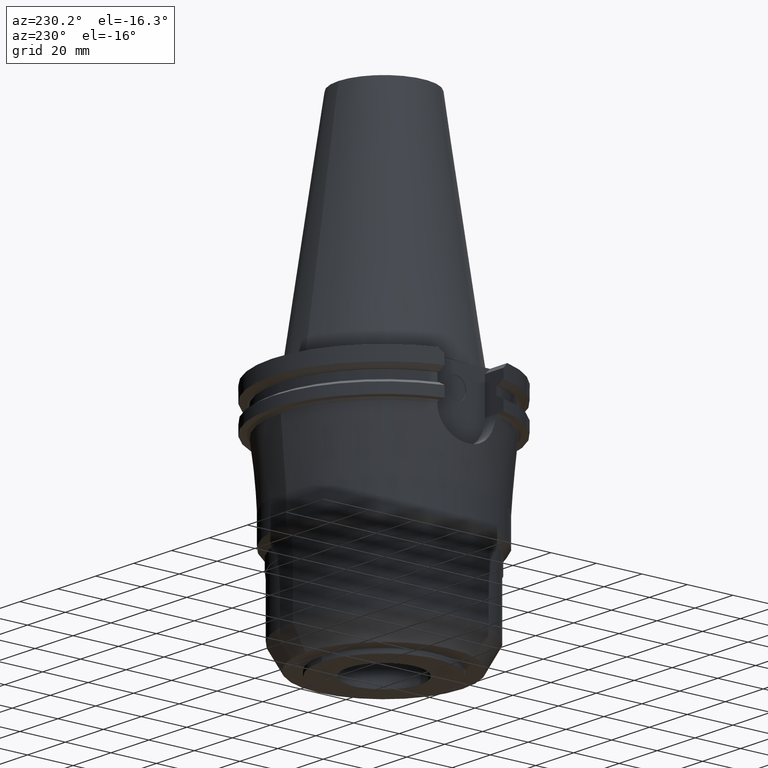
[diagram: clean part render]
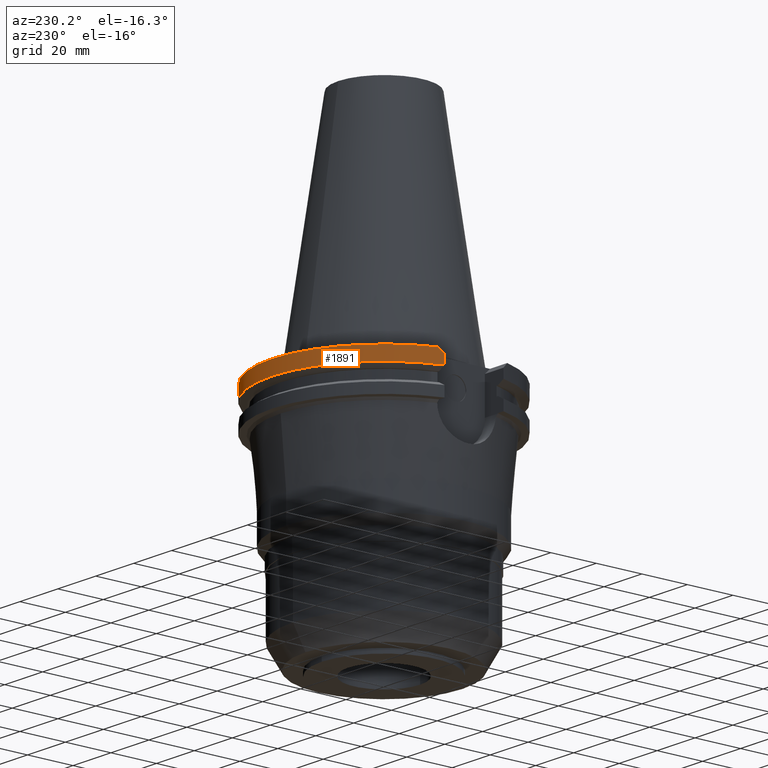
[diagram: same view with one face highlighted and labeled with its STEP entity id]
A machine part, auxiliary view. The second image highlights one B-rep face of the part: STEP entity #1891.
In plain terms, the highlighted cylindrical surface (partial cylindrical patch) has radius 49.2125 mm, axis along (0, 0, -1).
Its self-contained STEP definition (entity closure, byte-faithful):
#138=CARTESIAN_POINT('',(0.E0,2.594781638033E-14,-1.5E0));
#139=DIRECTION('',(0.E0,0.E0,-1.E0));
#140=DIRECTION('',(-9.514024724200E-1,3.079502159004E-1,0.E0));
#141=AXIS2_PLACEMENT_3D('',#138,#139,#140);
#146=CARTESIAN_POINT('',(0.E0,2.594781638033E-14,-1.5E0));
#147=DIRECTION('',(0.E0,0.E0,-1.E0));
#148=DIRECTION('',(0.E0,1.E0,0.E0));
#149=AXIS2_PLACEMENT_3D('',#146,#147,#148);
#228=DIRECTION('',(-2.622645846769E-13,-3.642563676068E-14,1.E0));
#229=VECTOR('',#228,3.901333230925E0);
#230=CARTESIAN_POINT('',(4.747671146204E1,1.2955E1,-7.601333230925E0));
#231=LINE('',#230,#229);
#235=CARTESIAN_POINT('',(4.747671146204E1,1.2955E1,-3.699999999999E0));
#236=CARTESIAN_POINT('',(4.727588310257E1,1.369098379593E1,-2.964016204073E0));
#237=CARTESIAN_POINT('',(4.705739607797E1,1.442433483212E1,-2.230665167880E0));
#238=CARTESIAN_POINT('',(4.682089417397E1,1.5155E1,-1.5E0));
#243=CARTESIAN_POINT('',(-4.682089417397E1,1.5155E1,-1.5E0));
#244=CARTESIAN_POINT('',(-4.705739607797E1,1.442433483212E1,-2.230665167880E0));
#245=CARTESIAN_POINT('',(-4.727588310257E1,1.369098379593E1,-2.964016204073E0));
#246=CARTESIAN_POINT('',(-4.747671146204E1,1.2955E1,-3.699999999999E0));
#251=DIRECTION('',(-2.622645846769E-13,3.460435492264E-14,-1.E0));
#252=VECTOR('',#251,3.901333230925E0);
#253=CARTESIAN_POINT('',(-4.747671146204E1,1.2955E1,-3.7E0));
#254=LINE('',#253,#252);
#651=CARTESIAN_POINT('',(0.E0,1.121722380079E-14,-7.601333230926E0));
#652=DIRECTION('',(0.E0,0.E0,1.E0));
#653=DIRECTION('',(9.647287063661E-1,2.632461264923E-1,0.E0));
#654=AXIS2_PLACEMENT_3D('',#651,#652,#653);
#659=CARTESIAN_POINT('',(0.E0,1.121722380079E-14,-7.601333230926E0));
#660=DIRECTION('',(0.E0,0.E0,1.E0));
#661=DIRECTION('',(0.E0,1.E0,0.E0));
#662=AXIS2_PLACEMENT_3D('',#659,#660,#661);
#1659=CARTESIAN_POINT('',(-4.682089417397E1,1.5155E1,-1.5E0));
#1660=VERTEX_POINT('',#1659);
#1661=CARTESIAN_POINT('',(-1.598721155460E-14,4.92125E1,-1.5E0));
#1662=CARTESIAN_POINT('',(4.682089417397E1,1.5155E1,-1.5E0));
#1663=VERTEX_POINT('',#1661);
#1664=VERTEX_POINT('',#1662);
#1679=VERTEX_POINT('',#235);
#1682=CARTESIAN_POINT('',(4.747671146204E1,1.2955E1,-7.601333230925E0));
#1683=VERTEX_POINT('',#1682);
#1684=VERTEX_POINT('',#246);
#1685=CARTESIAN_POINT('',(-4.747671146204E1,1.2955E1,-7.601333230925E0));
#1686=VERTEX_POINT('',#1685);
#1687=CARTESIAN_POINT('',(0.E0,4.92125E1,-7.601333230926E0));
#1688=VERTEX_POINT('',#1687);
#1871=CARTESIAN_POINT('',(0.E0,2.594781638033E-14,1.1188E2));
#1872=DIRECTION('',(0.E0,0.E0,-1.E0));
#1873=DIRECTION('',(0.E0,-1.E0,0.E0));
#1874=AXIS2_PLACEMENT_3D('',#1871,#1872,#1873);
#1875=CYLINDRICAL_SURFACE('',#1874,4.92125E1);
#1877=ORIENTED_EDGE('',*,*,#1876,.T.);
#1878=ORIENTED_EDGE('',*,*,#1862,.T.);
#1879=ORIENTED_EDGE('',*,*,#1825,.F.);
#1880=ORIENTED_EDGE('',*,*,#1823,.F.);
#1882=ORIENTED_EDGE('',*,*,#1881,.T.);
#1884=ORIENTED_EDGE('',*,*,#1883,.T.);
#1886=ORIENTED_EDGE('',*,*,#1885,.F.);
#1888=ORIENTED_EDGE('',*,*,#1887,.F.);
#1889=EDGE_LOOP('',(#1877,#1878,#1879,#1880,#1882,#1884,#1886,#1888));
#1890=FACE_OUTER_BOUND('',#1889,.F.);
#142=CIRCLE('',#141,4.92125E1);
#150=CIRCLE('',#149,4.92125E1);
#239=B_SPLINE_CURVE_WITH_KNOTS('',3,(#235,#236,#237,#238),.UNSPECIFIED.,.F.,.F.,
(4,4),(0.E0,1.E0),.UNSPECIFIED.);
#247=B_SPLINE_CURVE_WITH_KNOTS('',3,(#243,#244,#245,#246),.UNSPECIFIED.,.F.,.F.,
(4,4),(0.E0,1.E0),.UNSPECIFIED.);
#655=CIRCLE('',#654,4.92125E1);
#663=CIRCLE('',#662,4.92125E1);
#1823=EDGE_CURVE('',#1660,#1663,#142,.T.);
#1825=EDGE_CURVE('',#1663,#1664,#150,.T.);
#1862=EDGE_CURVE('',#1679,#1664,#239,.T.);
#1876=EDGE_CURVE('',#1683,#1679,#231,.T.);
#1881=EDGE_CURVE('',#1660,#1684,#247,.T.);
#1883=EDGE_CURVE('',#1684,#1686,#254,.T.);
#1885=EDGE_CURVE('',#1688,#1686,#663,.T.);
#1887=EDGE_CURVE('',#1683,#1688,#655,.T.);
#1891=ADVANCED_FACE('',(#1890),#1875,.T.);